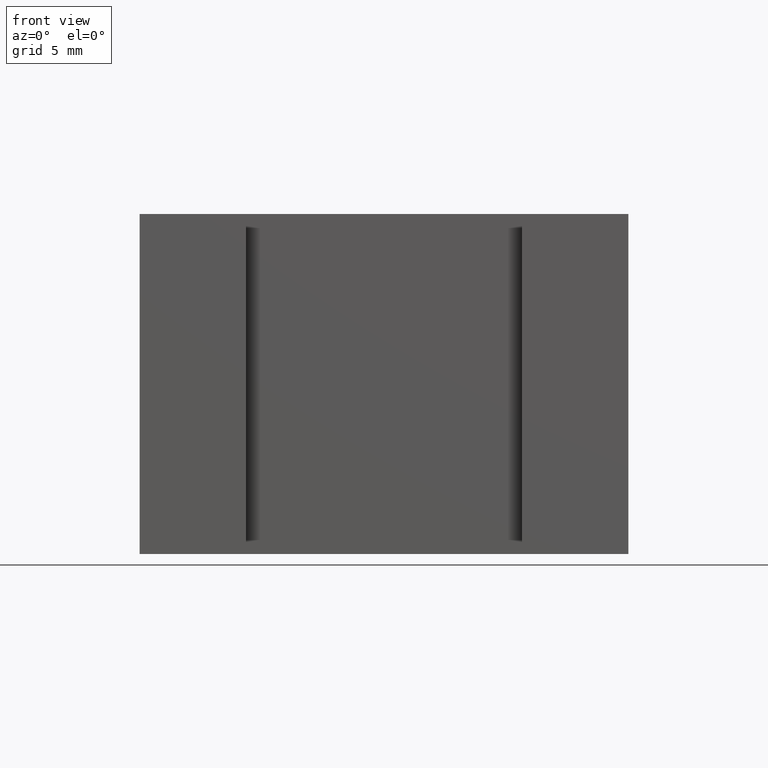
[diagram: clean part render]
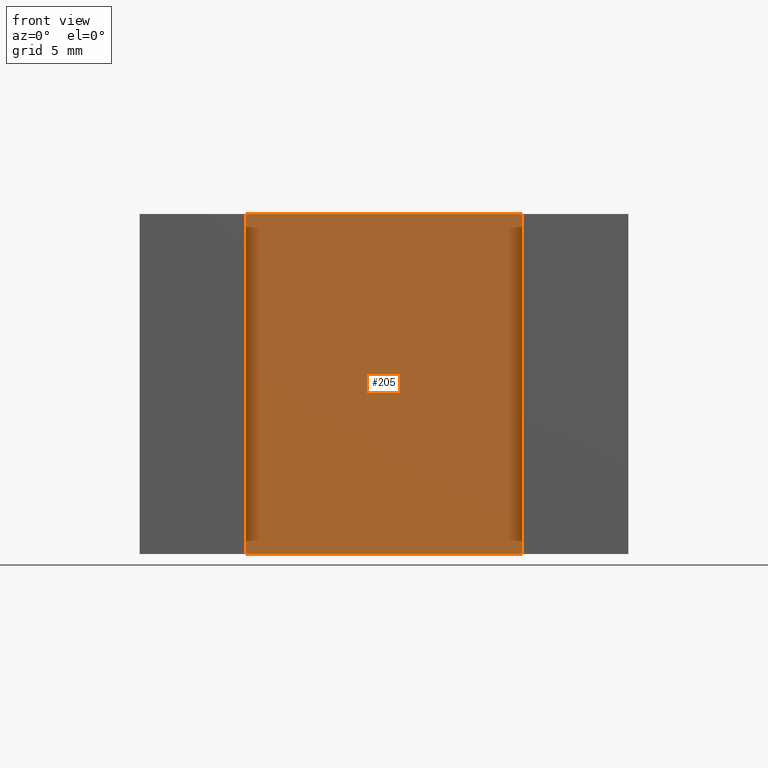
[diagram: same view with one face highlighted and labeled with its STEP entity id]
A machine part, front view. The second image highlights one B-rep face of the part: STEP entity #205.
In plain terms, the highlighted planar face has unit normal (0, -1, 0).
Its self-contained STEP definition (entity closure, byte-faithful):
#19=FACE_OUTER_BOUND('',#30,.T.);
#30=EDGE_LOOP('',(#151,#152,#153,#154));
#42=LINE('',#309,#69);
#49=LINE('',#323,#76);
#51=LINE('',#327,#78);
#52=LINE('',#328,#79);
#69=VECTOR('',#255,10.);
#76=VECTOR('',#264,10.);
#78=VECTOR('',#268,10.);
#79=VECTOR('',#269,10.);
#96=VERTEX_POINT('',#306);
#97=VERTEX_POINT('',#308);
#103=VERTEX_POINT('',#321);
#104=VERTEX_POINT('',#326);
#114=EDGE_CURVE('',#97,#96,#42,.T.);
#121=EDGE_CURVE('',#103,#96,#49,.T.);
#123=EDGE_CURVE('',#103,#104,#51,.T.);
#124=EDGE_CURVE('',#104,#97,#52,.T.);
#151=ORIENTED_EDGE('',*,*,#123,.T.);
#152=ORIENTED_EDGE('',*,*,#124,.T.);
#153=ORIENTED_EDGE('',*,*,#114,.T.);
#154=ORIENTED_EDGE('',*,*,#121,.F.);
#194=PLANE('',#239);
#205=ADVANCED_FACE('',(#19),#194,.T.);
#239=AXIS2_PLACEMENT_3D('',#325,#266,#267);
#255=DIRECTION('',(1.,0.,0.));
#264=DIRECTION('',(0.,0.,-1.));
#266=DIRECTION('center_axis',(0.,-1.,0.));
#267=DIRECTION('ref_axis',(0.,0.,-1.));
#268=DIRECTION('',(-1.,0.,0.));
#269=DIRECTION('',(0.,0.,-1.));
#306=CARTESIAN_POINT('',(6.5,1.5,-8.));
#308=CARTESIAN_POINT('',(-6.5,1.5,-8.));
#309=CARTESIAN_POINT('',(6.5,1.5,-8.));
#321=CARTESIAN_POINT('',(6.5,1.5,8.));
#323=CARTESIAN_POINT('',(6.5,1.5,0.));
#325=CARTESIAN_POINT('Origin',(6.5,1.5,0.));
#326=CARTESIAN_POINT('',(-6.5,1.5,8.));
#327=CARTESIAN_POINT('',(6.5,1.5,8.));
#328=CARTESIAN_POINT('',(-6.5,1.5,0.));